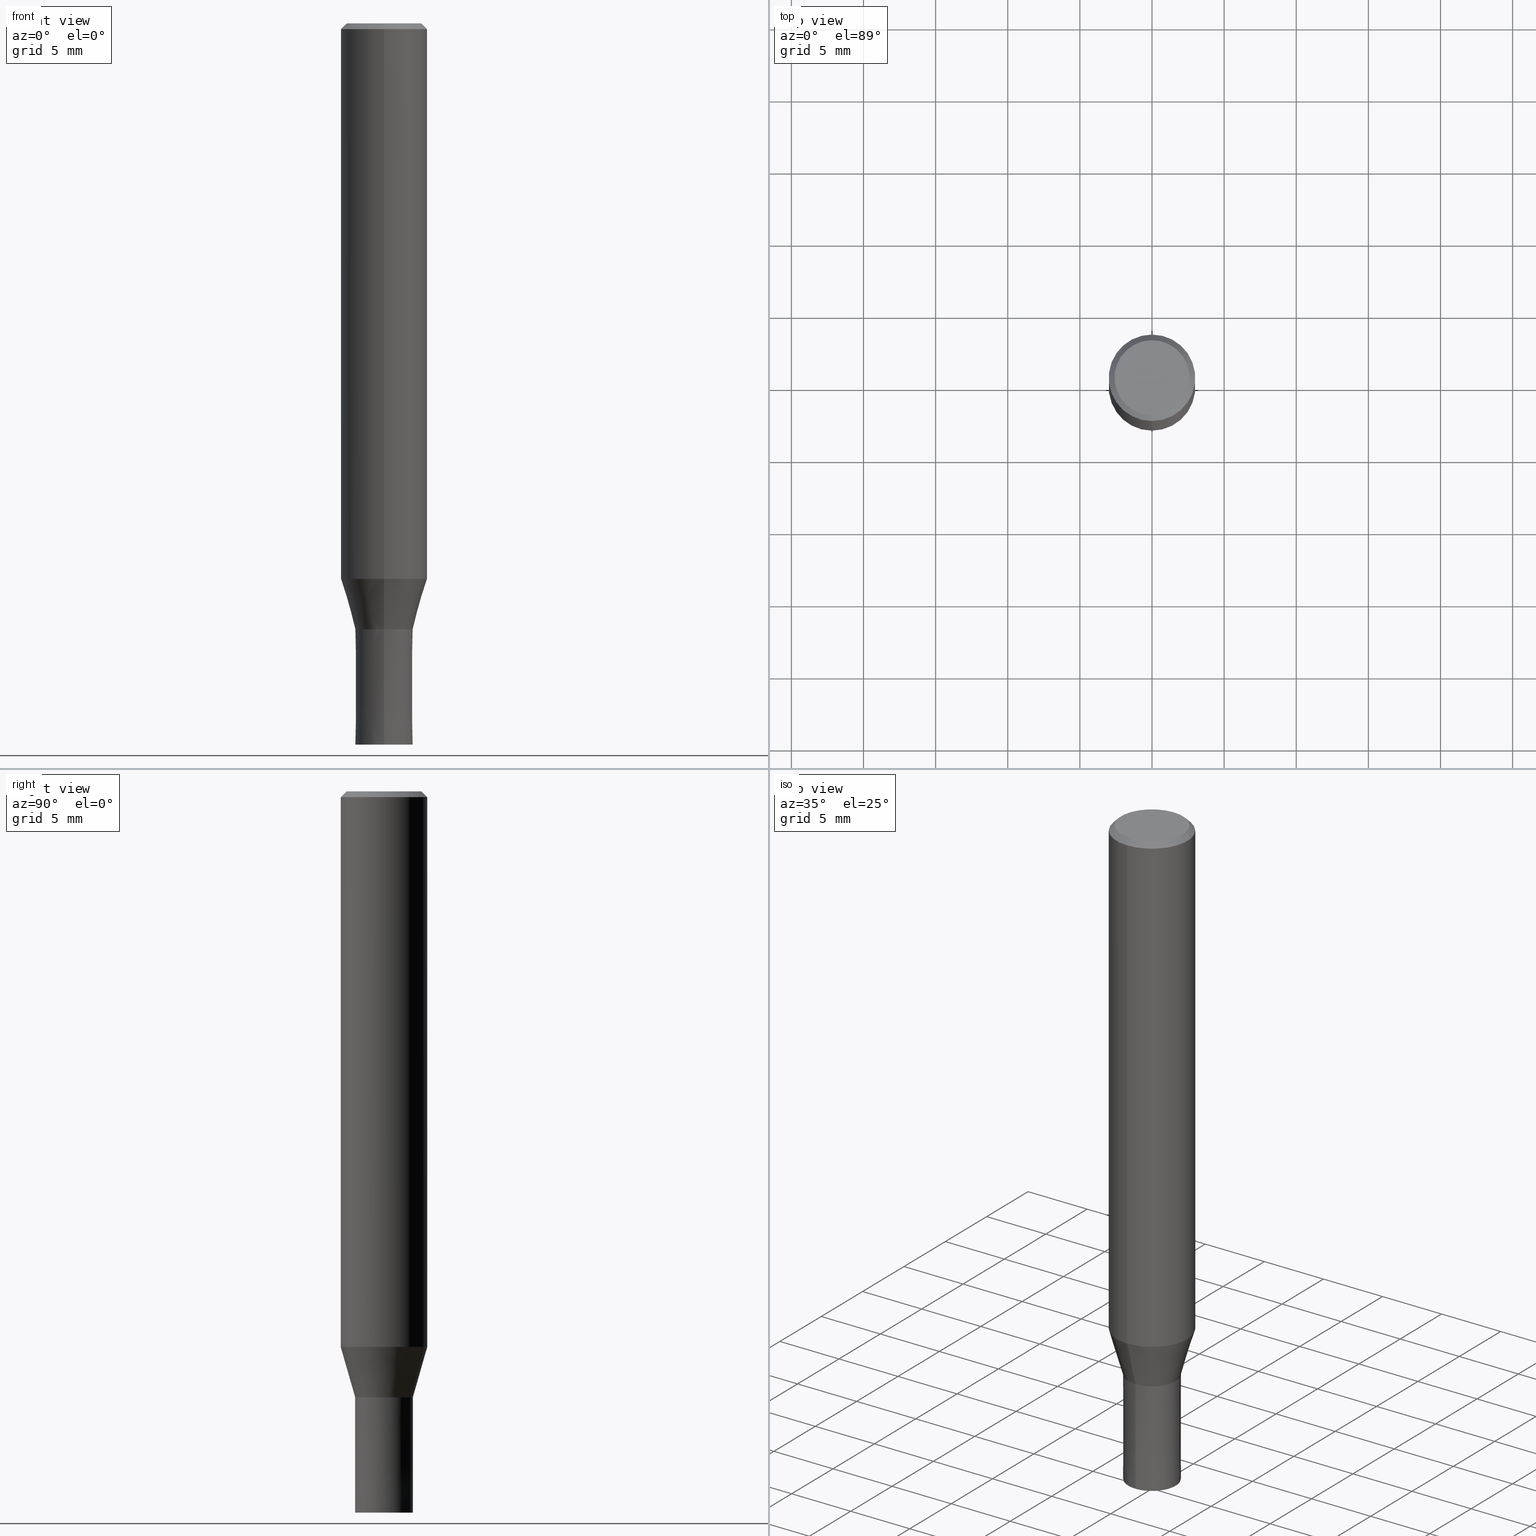
[diagram: canonical four-view strip — front | top / right | iso, engineering-drawing reading convention]
A machine part, canonical four-view strip (front | top / right | iso — engineering-drawing reading convention). The complete STEP part file that produces these views, byte-faithful:
ISO-10303-21;
HEADER;
FILE_DESCRIPTION(('no description'),'unknown implementation level');
FILE_NAME('HMS4040-0800-Huellk.stp','  ',('CIMSOURCE GmbH'),('CADClick - KiM GmbH - www.kimweb.de'),'unknown preprocess','ACIS','unknown authorization');
FILE_SCHEMA(('automotive_design'));
ENDSEC;
DATA;
#1=MECHANICAL_DESIGN_GEOMETRIC_PRESENTATION_REPRESENTATION(' ',(#14,#15,#16,#17,#18,#19,#20,#21,#22,#23,#24,#25,#26,#27,#28,#29,#30,#31,#32,#33,#34,#35,#36,#37,#38,#39,#40,#41,#42,#43,#44,#45,#46,#47,#48,#49,#50,#51,#52,#53,#54,#55,#56,#57,#58,#59,#60,#61,#62,#63,#64),#10);
#2=PRODUCT_DEFINITION_CONTEXT('',#65,'design');
#3=APPLICATION_PROTOCOL_DEFINITION('INTERNATIONAL STANDARD','automotive_design',1994,#65);
#4=PRODUCT_CATEGORY_RELATIONSHIP('NONE','NONE',#66,#67);
#5=SHAPE_DEFINITION_REPRESENTATION(#68,#69);
#6=PRODUCT_DEFINITION_CONTEXT('',#70,'design');
#7=APPLICATION_PROTOCOL_DEFINITION('INTERNATIONAL STANDARD','automotive_design',1994,#70);
#8=PRODUCT_CATEGORY_RELATIONSHIP('NONE','NONE',#71,#72);
#9=SHAPE_DEFINITION_REPRESENTATION(#73,#74);
#10= (GEOMETRIC_REPRESENTATION_CONTEXT(3)GLOBAL_UNCERTAINTY_ASSIGNED_CONTEXT((#77))GLOBAL_UNIT_ASSIGNED_CONTEXT((#79,#80,#81))REPRESENTATION_CONTEXT('NONE','WORKSPACE'));
#14=STYLED_ITEM('',(#83),#84);
#15=STYLED_ITEM('',(#85),#86);
#16=STYLED_ITEM('',(#87),#88);
#17=STYLED_ITEM('',(#89),#90);
#18=STYLED_ITEM('',(#91),#92);
#19=STYLED_ITEM('',(#93),#94);
#20=STYLED_ITEM('',(#95),#96);
#21=STYLED_ITEM('',(#97),#98);
#22=STYLED_ITEM('',(#99),#100);
#23=STYLED_ITEM('',(#101),#102);
#24=STYLED_ITEM('',(#103),#104);
#25=STYLED_ITEM('',(#105),#106);
#26=STYLED_ITEM('',(#107),#108);
#27=STYLED_ITEM('',(#109),#110);
#28=STYLED_ITEM('',(#111),#112);
#29=STYLED_ITEM('',(#113),#114);
#30=STYLED_ITEM('',(#115),#116);
#31=STYLED_ITEM('',(#117),#118);
#32=STYLED_ITEM('',(#119),#120);
#33=STYLED_ITEM('',(#121),#122);
#34=STYLED_ITEM('',(#123),#124);
#35=STYLED_ITEM('',(#125),#126);
#36=STYLED_ITEM('',(#127),#128);
#37=STYLED_ITEM('',(#129),#130);
#38=STYLED_ITEM('',(#131),#132);
#39=STYLED_ITEM('',(#133),#134);
#40=STYLED_ITEM('',(#135),#136);
#41=STYLED_ITEM('',(#137),#138);
#42=STYLED_ITEM('',(#139),#140);
#43=STYLED_ITEM('',(#141),#142);
#44=STYLED_ITEM('',(#143),#144);
#45=STYLED_ITEM('',(#145),#146);
#46=STYLED_ITEM('',(#147),#148);
#47=STYLED_ITEM('',(#149),#150);
#48=STYLED_ITEM('',(#151),#152);
#49=STYLED_ITEM('',(#153),#154);
#50=STYLED_ITEM('',(#155),#156);
#51=STYLED_ITEM('',(#157),#158);
#52=STYLED_ITEM('',(#159),#160);
#53=STYLED_ITEM('',(#161),#162);
#54=STYLED_ITEM('',(#163),#164);
#55=STYLED_ITEM('',(#165),#166);
#56=STYLED_ITEM('',(#167),#168);
#57=STYLED_ITEM('',(#169),#170);
#58=STYLED_ITEM('',(#171),#172);
#59=STYLED_ITEM('',(#173),#174);
#60=STYLED_ITEM('',(#175),#176);
#61=STYLED_ITEM('',(#177),#178);
#62=STYLED_ITEM('',(#179),#180);
#63=STYLED_ITEM('',(#181),#182);
#64=STYLED_ITEM('',(#183),#184);
#65=APPLICATION_CONTEXT(' ');
#66=PRODUCT_CATEGORY('part','NONE');
#67=PRODUCT_RELATED_PRODUCT_CATEGORY('detail',' ',(#185));
#68=PRODUCT_DEFINITION_SHAPE('NONE','NONE',#186);
#69=ADVANCED_BREP_SHAPE_REPRESENTATION('1',(#108,#187),#10);
#70=APPLICATION_CONTEXT(' ');
#71=PRODUCT_CATEGORY('part','NONE');
#72=PRODUCT_RELATED_PRODUCT_CATEGORY('detail',' ',(#188));
#73=PRODUCT_DEFINITION_SHAPE('NONE','NONE',#189);
#74=ADVANCED_BREP_SHAPE_REPRESENTATION('2',(#86,#190),#10);
#77=UNCERTAINTY_MEASURE_WITH_UNIT(LENGTH_MEASURE(1.0E-006),#79,'','');
#79= (CONVERSION_BASED_UNIT('MILLIMETRE',#193)LENGTH_UNIT()NAMED_UNIT(#196));
#80= (NAMED_UNIT(#198)PLANE_ANGLE_UNIT()SI_UNIT($,.RADIAN.));
#81= (NAMED_UNIT(#198)SOLID_ANGLE_UNIT()SI_UNIT($,.STERADIAN.));
#83=PRESENTATION_STYLE_ASSIGNMENT((#204));
#84=VERTEX_POINT('',#205);
#85=PRESENTATION_STYLE_ASSIGNMENT((#206));
#86=MANIFOLD_SOLID_BREP('2',#207);
#87=PRESENTATION_STYLE_ASSIGNMENT((#208));
#88=ADVANCED_FACE('',(#209),#210,.T.);
#89=PRESENTATION_STYLE_ASSIGNMENT((#211));
#90=VERTEX_POINT('',#212);
#91=PRESENTATION_STYLE_ASSIGNMENT((#213));
#92=EDGE_CURVE('',#180,#178,#214,.T.);
#93=PRESENTATION_STYLE_ASSIGNMENT((#215));
#94=ADVANCED_FACE('',(#216),#217,.T.);
#95=PRESENTATION_STYLE_ASSIGNMENT((#218));
#96=EDGE_CURVE('',#146,#104,#219,.T.);
#97=PRESENTATION_STYLE_ASSIGNMENT((#220));
#98=EDGE_CURVE('',#128,#112,#221,.T.);
#99=PRESENTATION_STYLE_ASSIGNMENT((#222));
#100=EDGE_CURVE('',#146,#126,#223,.T.);
#101=PRESENTATION_STYLE_ASSIGNMENT((#224));
#102=EDGE_CURVE('',#148,#182,#225,.T.);
#103=PRESENTATION_STYLE_ASSIGNMENT((#226));
#104=VERTEX_POINT('',#227);
#105=PRESENTATION_STYLE_ASSIGNMENT((#228));
#106=VERTEX_POINT('',#229);
#107=PRESENTATION_STYLE_ASSIGNMENT((#230));
#108=MANIFOLD_SOLID_BREP('1',#231);
#109=PRESENTATION_STYLE_ASSIGNMENT((#232));
#110=EDGE_CURVE('',#84,#156,#233,.T.);
#111=PRESENTATION_STYLE_ASSIGNMENT((#234));
#112=VERTEX_POINT('',#235);
#113=PRESENTATION_STYLE_ASSIGNMENT((#236));
#114=ADVANCED_FACE('',(#237),#238,.T.);
#115=PRESENTATION_STYLE_ASSIGNMENT((#239));
#116=EDGE_CURVE('',#104,#146,#240,.T.);
#117=PRESENTATION_STYLE_ASSIGNMENT((#241));
#118=ADVANCED_FACE('',(#242),#243,.T.);
#119=PRESENTATION_STYLE_ASSIGNMENT((#244));
#120=ADVANCED_FACE('',(#245),#246,.T.);
#121=PRESENTATION_STYLE_ASSIGNMENT((#247));
#122=ADVANCED_FACE('',(#248,#249),#250,.T.);
#123=PRESENTATION_STYLE_ASSIGNMENT((#251));
#124=EDGE_CURVE('',#106,#104,#252,.T.);
#125=PRESENTATION_STYLE_ASSIGNMENT((#253));
#126=VERTEX_POINT('',#254);
#127=PRESENTATION_STYLE_ASSIGNMENT((#255));
#128=VERTEX_POINT('',#256);
#129=PRESENTATION_STYLE_ASSIGNMENT((#257));
#130=EDGE_CURVE('',#178,#180,#258,.T.);
#131=PRESENTATION_STYLE_ASSIGNMENT((#259));
#132=EDGE_CURVE('',#162,#106,#260,.T.);
#133=PRESENTATION_STYLE_ASSIGNMENT((#261));
#134=EDGE_CURVE('',#156,#180,#262,.T.);
#135=PRESENTATION_STYLE_ASSIGNMENT((#263));
#136=ADVANCED_FACE('',(#264),#265,.T.);
#137=PRESENTATION_STYLE_ASSIGNMENT((#266));
#138=EDGE_CURVE('',#148,#128,#267,.T.);
#139=PRESENTATION_STYLE_ASSIGNMENT((#268));
#140=EDGE_CURVE('',#106,#126,#269,.T.);
#141=PRESENTATION_STYLE_ASSIGNMENT((#270));
#142=ADVANCED_FACE('',(#271),#272,.T.);
#143=PRESENTATION_STYLE_ASSIGNMENT((#273));
#144=EDGE_CURVE('',#178,#84,#274,.T.);
#145=PRESENTATION_STYLE_ASSIGNMENT((#275));
#146=VERTEX_POINT('',#276);
#147=PRESENTATION_STYLE_ASSIGNMENT((#277));
#148=VERTEX_POINT('',#278);
#149=PRESENTATION_STYLE_ASSIGNMENT((#279));
#150=EDGE_CURVE('',#126,#90,#280,.T.);
#151=PRESENTATION_STYLE_ASSIGNMENT((#281));
#152=EDGE_CURVE('',#126,#106,#282,.T.);
#153=PRESENTATION_STYLE_ASSIGNMENT((#283));
#154=EDGE_CURVE('',#112,#128,#284,.T.);
#155=PRESENTATION_STYLE_ASSIGNMENT((#285));
#156=VERTEX_POINT('',#286);
#157=PRESENTATION_STYLE_ASSIGNMENT((#287));
#158=ADVANCED_FACE('',(#288),#289,.T.);
#159=PRESENTATION_STYLE_ASSIGNMENT((#290));
#160=ADVANCED_FACE('',(#291),#292,.T.);
#161=PRESENTATION_STYLE_ASSIGNMENT((#293));
#162=VERTEX_POINT('',#294);
#163=PRESENTATION_STYLE_ASSIGNMENT((#295));
#164=EDGE_CURVE('',#90,#162,#296,.T.);
#165=PRESENTATION_STYLE_ASSIGNMENT((#297));
#166=EDGE_CURVE('',#156,#84,#298,.T.);
#167=PRESENTATION_STYLE_ASSIGNMENT((#299));
#168=EDGE_CURVE('',#162,#90,#300,.T.);
#169=PRESENTATION_STYLE_ASSIGNMENT((#301));
#170=EDGE_CURVE('',#182,#148,#302,.T.);
#171=PRESENTATION_STYLE_ASSIGNMENT((#303));
#172=ADVANCED_FACE('',(#304),#305,.T.);
#173=PRESENTATION_STYLE_ASSIGNMENT((#306));
#174=ADVANCED_FACE('',(#307),#308,.T.);
#175=PRESENTATION_STYLE_ASSIGNMENT((#309));
#176=ADVANCED_FACE('',(#310),#311,.T.);
#177=PRESENTATION_STYLE_ASSIGNMENT((#312));
#178=VERTEX_POINT('',#313);
#179=PRESENTATION_STYLE_ASSIGNMENT((#314));
#180=VERTEX_POINT('',#315);
#181=PRESENTATION_STYLE_ASSIGNMENT((#316));
#182=VERTEX_POINT('',#317);
#183=PRESENTATION_STYLE_ASSIGNMENT((#318));
#184=EDGE_CURVE('',#112,#182,#319,.T.);
#185=PRODUCT('1','1','PART-1-DESC',(#320));
#186=PRODUCT_DEFINITION('NONE','NONE',#321,#2);
#187=AXIS2_PLACEMENT_3D('',#322,#323,#324);
#188=PRODUCT('2','2','PART-2-DESC',(#325));
#189=PRODUCT_DEFINITION('NONE','NONE',#326,#6);
#190=AXIS2_PLACEMENT_3D('',#327,#328,#329);
#193=LENGTH_MEASURE_WITH_UNIT(LENGTH_MEASURE(1.0),#330);
#196=DIMENSIONAL_EXPONENTS(1.0,0.0,0.0,0.0,0.0,0.0,0.0);
#198=DIMENSIONAL_EXPONENTS(0.0,0.0,0.0,0.0,0.0,0.0,0.0);
#204=POINT_STYLE(' ',#331,POSITIVE_LENGTH_MEASURE(1.0E-006),#332);
#205=CARTESIAN_POINT('',(0.0,2.0,-50.0));
#206=SURFACE_STYLE_USAGE(.BOTH.,#333);
#207=CLOSED_SHELL('',(#88,#176,#114,#158));
#208=SURFACE_STYLE_USAGE(.BOTH.,#334);
#209=FACE_OUTER_BOUND('',#335,.T.);
#210=CONICAL_SURFACE('',#336,1.99995,1.24999999993476E-005);
#211=POINT_STYLE(' ',#337,POSITIVE_LENGTH_MEASURE(1.0E-006),#338);
#212=CARTESIAN_POINT('',(0.0,3.0,-38.513));
#213=CURVE_STYLE('',#339,POSITIVE_LENGTH_MEASURE(1.0E-006),#340);
#214=CIRCLE('',#341,1.9999);
#215=SURFACE_STYLE_USAGE(.BOTH.,#342);
#216=FACE_OUTER_BOUND('',#343,.T.);
#217=PLANE('',#344);
#218=CURVE_STYLE('',#345,POSITIVE_LENGTH_MEASURE(1.0E-006),#346);
#219=CIRCLE('',#347,2.6);
#220=CURVE_STYLE('',#348,POSITIVE_LENGTH_MEASURE(1.0E-006),#349);
#221=CIRCLE('',#350,2.99995);
#222=CURVE_STYLE('',#351,POSITIVE_LENGTH_MEASURE(1.0E-006),#352);
#223=LINE('',#353,#354);
#224=CURVE_STYLE('',#355,POSITIVE_LENGTH_MEASURE(1.0E-006),#356);
#225=CIRCLE('',#357,1.99995);
#226=POINT_STYLE(' ',#358,POSITIVE_LENGTH_MEASURE(1.0E-006),#359);
#227=CARTESIAN_POINT('',(3.18397651993818E-016,-2.6,0.0));
#228=POINT_STYLE(' ',#360,POSITIVE_LENGTH_MEASURE(1.0E-006),#361);
#229=CARTESIAN_POINT('',(3.67381906146713E-016,-3.0,-0.399999999999999));
#230=SURFACE_STYLE_USAGE(.BOTH.,#362);
#231=CLOSED_SHELL('',(#118,#136,#172,#122,#94,#174,#142,#120,#160));
#232=CURVE_STYLE('',#363,POSITIVE_LENGTH_MEASURE(1.0E-006),#364);
#233=CIRCLE('',#365,2.0);
#234=POINT_STYLE(' ',#366,POSITIVE_LENGTH_MEASURE(1.0E-006),#367);
#235=CARTESIAN_POINT('',(0.0,2.99995,-38.513));
#236=SURFACE_STYLE_USAGE(.BOTH.,#368);
#237=FACE_OUTER_BOUND('',#369,.T.);
#238=CONICAL_SURFACE('',#370,1.99995,1.24999999993476E-005);
#239=CURVE_STYLE('',#371,POSITIVE_LENGTH_MEASURE(1.0E-006),#372);
#240=CIRCLE('',#373,2.6);
#241=SURFACE_STYLE_USAGE(.BOTH.,#374);
#242=FACE_OUTER_BOUND('',#375,.T.);
#243=CONICAL_SURFACE('',#376,2.49995,0.279284171542493);
#244=SURFACE_STYLE_USAGE(.BOTH.,#377);
#245=FACE_OUTER_BOUND('',#378,.T.);
#246=CONICAL_SURFACE('',#379,2.49995,0.279284171542493);
#247=SURFACE_STYLE_USAGE(.BOTH.,#380);
#248=FACE_OUTER_BOUND('',#381,.T.);
#249=FACE_BOUND('',#382,.T.);
#250=PLANE('',#383);
#251=CURVE_STYLE('',#384,POSITIVE_LENGTH_MEASURE(1.0E-006),#385);
#252=LINE('',#386,#387);
#253=POINT_STYLE(' ',#388,POSITIVE_LENGTH_MEASURE(1.0E-006),#389);
#254=CARTESIAN_POINT('',(0.0,3.0,-0.399999999999999));
#255=POINT_STYLE(' ',#390,POSITIVE_LENGTH_MEASURE(1.0E-006),#391);
#256=CARTESIAN_POINT('',(3.67375783114944E-016,-2.99995,-38.513));
#257=CURVE_STYLE('',#392,POSITIVE_LENGTH_MEASURE(1.0E-006),#393);
#258=CIRCLE('',#394,1.9999);
#259=CURVE_STYLE('',#395,POSITIVE_LENGTH_MEASURE(1.0E-006),#396);
#260=LINE('',#397,#398);
#261=CURVE_STYLE('',#399,POSITIVE_LENGTH_MEASURE(1.0E-006),#400);
#262=LINE('',#401,#402);
#263=SURFACE_STYLE_USAGE(.BOTH.,#403);
#264=FACE_OUTER_BOUND('',#404,.T.);
#265=CYLINDRICAL_SURFACE('',#405,3.0);
#266=CURVE_STYLE('',#406,POSITIVE_LENGTH_MEASURE(1.0E-006),#407);
#267=LINE('',#408,#409);
#268=CURVE_STYLE('',#410,POSITIVE_LENGTH_MEASURE(1.0E-006),#411);
#269=CIRCLE('',#412,3.0);
#270=SURFACE_STYLE_USAGE(.BOTH.,#413);
#271=FACE_OUTER_BOUND('',#414,.T.);
#272=CYLINDRICAL_SURFACE('',#415,3.0);
#273=CURVE_STYLE('',#416,POSITIVE_LENGTH_MEASURE(1.0E-006),#417);
#274=LINE('',#418,#419);
#275=POINT_STYLE(' ',#420,POSITIVE_LENGTH_MEASURE(1.0E-006),#421);
#276=CARTESIAN_POINT('',(0.0,2.6,0.0));
#277=POINT_STYLE(' ',#422,POSITIVE_LENGTH_MEASURE(1.0E-006),#423);
#278=CARTESIAN_POINT('',(2.44915147732706E-016,-1.99995,-42.0));
#279=CURVE_STYLE('',#424,POSITIVE_LENGTH_MEASURE(1.0E-006),#425);
#280=LINE('',#426,#427);
#281=CURVE_STYLE('',#428,POSITIVE_LENGTH_MEASURE(1.0E-006),#429);
#282=CIRCLE('',#430,3.0);
#283=CURVE_STYLE('',#431,POSITIVE_LENGTH_MEASURE(1.0E-006),#432);
#284=CIRCLE('',#433,2.99995);
#285=POINT_STYLE(' ',#434,POSITIVE_LENGTH_MEASURE(1.0E-006),#435);
#286=CARTESIAN_POINT('',(2.44921270764475E-016,-2.0,-50.0));
#287=SURFACE_STYLE_USAGE(.BOTH.,#436);
#288=FACE_OUTER_BOUND('',#437,.T.);
#289=PLANE('',#438);
#290=SURFACE_STYLE_USAGE(.BOTH.,#439);
#291=FACE_OUTER_BOUND('',#440,.T.);
#292=PLANE('',#441);
#293=POINT_STYLE(' ',#442,POSITIVE_LENGTH_MEASURE(1.0E-006),#443);
#294=CARTESIAN_POINT('',(3.67381906146713E-016,-3.0,-38.513));
#295=CURVE_STYLE('',#444,POSITIVE_LENGTH_MEASURE(1.0E-006),#445);
#296=CIRCLE('',#446,3.0);
#297=CURVE_STYLE('',#447,POSITIVE_LENGTH_MEASURE(1.0E-006),#448);
#298=CIRCLE('',#449,2.0);
#299=CURVE_STYLE('',#450,POSITIVE_LENGTH_MEASURE(1.0E-006),#451);
#300=CIRCLE('',#452,3.0);
#301=CURVE_STYLE('',#453,POSITIVE_LENGTH_MEASURE(1.0E-006),#454);
#302=CIRCLE('',#455,1.99995);
#303=SURFACE_STYLE_USAGE(.BOTH.,#456);
#304=FACE_OUTER_BOUND('',#457,.T.);
#305=CONICAL_SURFACE('',#458,2.8,0.78539816339745);
#306=SURFACE_STYLE_USAGE(.BOTH.,#459);
#307=FACE_OUTER_BOUND('',#460,.T.);
#308=CONICAL_SURFACE('',#461,2.8,0.78539816339745);
#309=SURFACE_STYLE_USAGE(.BOTH.,#462);
#310=FACE_OUTER_BOUND('',#463,.T.);
#311=PLANE('',#464);
#312=POINT_STYLE(' ',#465,POSITIVE_LENGTH_MEASURE(1.0E-006),#466);
#313=CARTESIAN_POINT('',(0.0,1.9999,-42.0));
#314=POINT_STYLE(' ',#467,POSITIVE_LENGTH_MEASURE(1.0E-006),#468);
#315=CARTESIAN_POINT('',(2.44909024700937E-016,-1.9999,-42.0));
#316=POINT_STYLE(' ',#469,POSITIVE_LENGTH_MEASURE(1.0E-006),#470);
#317=CARTESIAN_POINT('',(0.0,1.99995,-42.0));
#318=CURVE_STYLE('',#471,POSITIVE_LENGTH_MEASURE(1.0E-006),#472);
#319=LINE('',#473,#474);
#320=PRODUCT_CONTEXT('',#65,'mechanical');
#321=PRODUCT_DEFINITION_FORMATION_WITH_SPECIFIED_SOURCE(' ','NONE',#185,.NOT_KNOWN.);
#322=CARTESIAN_POINT('',(0.0,0.0,0.0));
#323=DIRECTION('',(0.0,0.0,1.0));
#324=DIRECTION('',(1.0,0.0,0.0));
#325=PRODUCT_CONTEXT('',#70,'mechanical');
#326=PRODUCT_DEFINITION_FORMATION_WITH_SPECIFIED_SOURCE(' ','NONE',#188,.NOT_KNOWN.);
#327=CARTESIAN_POINT('',(0.0,0.0,0.0));
#328=DIRECTION('',(0.0,0.0,1.0));
#329=DIRECTION('',(1.0,0.0,0.0));
#330= (NAMED_UNIT(#196)LENGTH_UNIT()SI_UNIT(.MILLI.,.METRE.));
#331=PRE_DEFINED_MARKER('');
#332=COLOUR_RGB('',0.800000011920929,0.800000011920929,0.800000011920929);
#333=SURFACE_SIDE_STYLE('',(#476));
#334=SURFACE_SIDE_STYLE('',(#477));
#335=EDGE_LOOP('',(#478,#479,#480,#481));
#336=AXIS2_PLACEMENT_3D('',#482,#483,#484);
#337=PRE_DEFINED_MARKER('');
#338=COLOUR_RGB('',0.498039215803146,0.498039215803146,0.498039215803146);
#339=DRAUGHTING_PRE_DEFINED_CURVE_FONT('continuous');
#340=COLOUR_RGB('',0.800000011920929,0.800000011920929,0.800000011920929);
#341=AXIS2_PLACEMENT_3D('',#485,#486,#487);
#342=SURFACE_SIDE_STYLE('',(#488));
#343=EDGE_LOOP('',(#489,#490));
#344=AXIS2_PLACEMENT_3D('',#491,#492,#493);
#345=DRAUGHTING_PRE_DEFINED_CURVE_FONT('continuous');
#346=COLOUR_RGB('',0.498039215803146,0.498039215803146,0.498039215803146);
#347=AXIS2_PLACEMENT_3D('',#494,#495,#496);
#348=DRAUGHTING_PRE_DEFINED_CURVE_FONT('continuous');
#349=COLOUR_RGB('',0.498039215803146,0.498039215803146,0.498039215803146);
#350=AXIS2_PLACEMENT_3D('',#497,#498,#499);
#351=DRAUGHTING_PRE_DEFINED_CURVE_FONT('continuous');
#352=COLOUR_RGB('',0.498039215803146,0.498039215803146,0.498039215803146);
#353=CARTESIAN_POINT('',(-3.42889779070266E-016,2.8,-0.200000000000003));
#354=VECTOR('',#500,1.0);
#355=DRAUGHTING_PRE_DEFINED_CURVE_FONT('continuous');
#356=COLOUR_RGB('',0.498039215803146,0.498039215803146,0.498039215803146);
#357=AXIS2_PLACEMENT_3D('',#501,#502,#503);
#358=PRE_DEFINED_MARKER('');
#359=COLOUR_RGB('',0.498039215803146,0.498039215803146,0.498039215803146);
#360=PRE_DEFINED_MARKER('');
#361=COLOUR_RGB('',0.498039215803146,0.498039215803146,0.498039215803146);
#362=SURFACE_SIDE_STYLE('',(#504));
#363=DRAUGHTING_PRE_DEFINED_CURVE_FONT('continuous');
#364=COLOUR_RGB('',0.800000011920929,0.800000011920929,0.800000011920929);
#365=AXIS2_PLACEMENT_3D('',#505,#506,#507);
#366=PRE_DEFINED_MARKER('');
#367=COLOUR_RGB('',0.498039215803146,0.498039215803146,0.498039215803146);
#368=SURFACE_SIDE_STYLE('',(#508));
#369=EDGE_LOOP('',(#509,#510,#511,#512));
#370=AXIS2_PLACEMENT_3D('',#513,#514,#515);
#371=DRAUGHTING_PRE_DEFINED_CURVE_FONT('continuous');
#372=COLOUR_RGB('',0.498039215803146,0.498039215803146,0.498039215803146);
#373=AXIS2_PLACEMENT_3D('',#516,#517,#518);
#374=SURFACE_SIDE_STYLE('',(#519));
#375=EDGE_LOOP('',(#520,#521,#522,#523));
#376=AXIS2_PLACEMENT_3D('',#524,#525,#526);
#377=SURFACE_SIDE_STYLE('',(#527));
#378=EDGE_LOOP('',(#528,#529,#530,#531));
#379=AXIS2_PLACEMENT_3D('',#532,#533,#534);
#380=SURFACE_SIDE_STYLE('',(#535));
#381=EDGE_LOOP('',(#536,#537));
#382=EDGE_LOOP('',(#538,#539));
#383=AXIS2_PLACEMENT_3D('',#540,#541,#542);
#384=DRAUGHTING_PRE_DEFINED_CURVE_FONT('continuous');
#385=COLOUR_RGB('',0.498039215803146,0.498039215803146,0.498039215803146);
#386=CARTESIAN_POINT('',(3.42889779070266E-016,-2.8,-0.200000000000003));
#387=VECTOR('',#543,1.0);
#388=PRE_DEFINED_MARKER('');
#389=COLOUR_RGB('',0.498039215803146,0.498039215803146,0.498039215803146);
#390=PRE_DEFINED_MARKER('');
#391=COLOUR_RGB('',0.498039215803146,0.498039215803146,0.498039215803146);
#392=DRAUGHTING_PRE_DEFINED_CURVE_FONT('continuous');
#393=COLOUR_RGB('',0.800000011920929,0.800000011920929,0.800000011920929);
#394=AXIS2_PLACEMENT_3D('',#544,#545,#546);
#395=DRAUGHTING_PRE_DEFINED_CURVE_FONT('continuous');
#396=COLOUR_RGB('',0.498039215803146,0.498039215803146,0.498039215803146);
#397=CARTESIAN_POINT('',(3.67381906146713E-016,-3.0,-19.4565));
#398=VECTOR('',#547,1.0);
#399=DRAUGHTING_PRE_DEFINED_CURVE_FONT('continuous');
#400=COLOUR_RGB('',0.800000011920929,0.800000011920929,0.800000011920929);
#401=CARTESIAN_POINT('',(2.44915147732706E-016,-1.99995,-46.0));
#402=VECTOR('',#548,1.0);
#403=SURFACE_SIDE_STYLE('',(#549));
#404=EDGE_LOOP('',(#550,#551,#552,#553));
#405=AXIS2_PLACEMENT_3D('',#554,#555,#556);
#406=DRAUGHTING_PRE_DEFINED_CURVE_FONT('continuous');
#407=COLOUR_RGB('',0.498039215803146,0.498039215803146,0.498039215803146);
#408=CARTESIAN_POINT('',(3.06145465423825E-016,-2.49995,-40.2565));
#409=VECTOR('',#557,1.0);
#410=DRAUGHTING_PRE_DEFINED_CURVE_FONT('continuous');
#411=COLOUR_RGB('',0.498039215803146,0.498039215803146,0.498039215803146);
#412=AXIS2_PLACEMENT_3D('',#558,#559,#560);
#413=SURFACE_SIDE_STYLE('',(#561));
#414=EDGE_LOOP('',(#562,#563,#564,#565));
#415=AXIS2_PLACEMENT_3D('',#566,#567,#568);
#416=DRAUGHTING_PRE_DEFINED_CURVE_FONT('continuous');
#417=COLOUR_RGB('',0.800000011920929,0.800000011920929,0.800000011920929);
#418=CARTESIAN_POINT('',(-2.44915147732706E-016,1.99995,-46.0));
#419=VECTOR('',#569,1.0);
#420=PRE_DEFINED_MARKER('');
#421=COLOUR_RGB('',0.498039215803146,0.498039215803146,0.498039215803146);
#422=PRE_DEFINED_MARKER('');
#423=COLOUR_RGB('',0.498039215803146,0.498039215803146,0.498039215803146);
#424=DRAUGHTING_PRE_DEFINED_CURVE_FONT('continuous');
#425=COLOUR_RGB('',0.498039215803146,0.498039215803146,0.498039215803146);
#426=CARTESIAN_POINT('',(-3.67381906146713E-016,3.0,-19.4565));
#427=VECTOR('',#570,1.0);
#428=DRAUGHTING_PRE_DEFINED_CURVE_FONT('continuous');
#429=COLOUR_RGB('',0.498039215803146,0.498039215803146,0.498039215803146);
#430=AXIS2_PLACEMENT_3D('',#571,#572,#573);
#431=DRAUGHTING_PRE_DEFINED_CURVE_FONT('continuous');
#432=COLOUR_RGB('',0.498039215803146,0.498039215803146,0.498039215803146);
#433=AXIS2_PLACEMENT_3D('',#574,#575,#576);
#434=PRE_DEFINED_MARKER('');
#435=COLOUR_RGB('',0.800000011920929,0.800000011920929,0.800000011920929);
#436=SURFACE_SIDE_STYLE('',(#577));
#437=EDGE_LOOP('',(#578,#579));
#438=AXIS2_PLACEMENT_3D('',#580,#581,#582);
#439=SURFACE_SIDE_STYLE('',(#583));
#440=EDGE_LOOP('',(#584,#585));
#441=AXIS2_PLACEMENT_3D('',#586,#587,#588);
#442=PRE_DEFINED_MARKER('');
#443=COLOUR_RGB('',0.498039215803146,0.498039215803146,0.498039215803146);
#444=DRAUGHTING_PRE_DEFINED_CURVE_FONT('continuous');
#445=COLOUR_RGB('',0.498039215803146,0.498039215803146,0.498039215803146);
#446=AXIS2_PLACEMENT_3D('',#589,#590,#591);
#447=DRAUGHTING_PRE_DEFINED_CURVE_FONT('continuous');
#448=COLOUR_RGB('',0.800000011920929,0.800000011920929,0.800000011920929);
#449=AXIS2_PLACEMENT_3D('',#592,#593,#594);
#450=DRAUGHTING_PRE_DEFINED_CURVE_FONT('continuous');
#451=COLOUR_RGB('',0.498039215803146,0.498039215803146,0.498039215803146);
#452=AXIS2_PLACEMENT_3D('',#595,#596,#597);
#453=DRAUGHTING_PRE_DEFINED_CURVE_FONT('continuous');
#454=COLOUR_RGB('',0.498039215803146,0.498039215803146,0.498039215803146);
#455=AXIS2_PLACEMENT_3D('',#598,#599,#600);
#456=SURFACE_SIDE_STYLE('',(#601));
#457=EDGE_LOOP('',(#602,#603,#604,#605));
#458=AXIS2_PLACEMENT_3D('',#606,#607,#608);
#459=SURFACE_SIDE_STYLE('',(#609));
#460=EDGE_LOOP('',(#610,#611,#612,#613));
#461=AXIS2_PLACEMENT_3D('',#614,#615,#616);
#462=SURFACE_SIDE_STYLE('',(#617));
#463=EDGE_LOOP('',(#618,#619));
#464=AXIS2_PLACEMENT_3D('',#620,#621,#622);
#465=PRE_DEFINED_MARKER('');
#466=COLOUR_RGB('',0.800000011920929,0.800000011920929,0.800000011920929);
#467=PRE_DEFINED_MARKER('');
#468=COLOUR_RGB('',0.800000011920929,0.800000011920929,0.800000011920929);
#469=PRE_DEFINED_MARKER('');
#470=COLOUR_RGB('',0.498039215803146,0.498039215803146,0.498039215803146);
#471=DRAUGHTING_PRE_DEFINED_CURVE_FONT('continuous');
#472=COLOUR_RGB('',0.498039215803146,0.498039215803146,0.498039215803146);
#473=CARTESIAN_POINT('',(-3.06145465423825E-016,2.49995,-40.2565));
#474=VECTOR('',#623,1.0);
#476=SURFACE_STYLE_FILL_AREA(#624);
#477=SURFACE_STYLE_FILL_AREA(#625);
#478=ORIENTED_EDGE('',*,*,#144,.F.);
#479=ORIENTED_EDGE('',*,*,#130,.T.);
#480=ORIENTED_EDGE('',*,*,#134,.F.);
#481=ORIENTED_EDGE('',*,*,#110,.F.);
#482=CARTESIAN_POINT('',(0.0,0.0,-46.0));
#483=DIRECTION('',(0.0,-0.0,-1.0));
#484=DIRECTION('',(0.0,1.0,0.0));
#485=CARTESIAN_POINT('',(0.0,0.0,-42.0));
#486=DIRECTION('',(0.0,0.0,-1.0));
#487=DIRECTION('',(0.0,1.0,0.0));
#488=SURFACE_STYLE_FILL_AREA(#626);
#489=ORIENTED_EDGE('',*,*,#96,.F.);
#490=ORIENTED_EDGE('',*,*,#116,.F.);
#491=CARTESIAN_POINT('',(0.0,1.3,0.0));
#492=DIRECTION('',(-0.0,0.0,1.0));
#493=DIRECTION('',(0.0,-1.0,0.0));
#494=CARTESIAN_POINT('',(0.0,0.0,0.0));
#495=DIRECTION('',(0.0,0.0,-1.0));
#496=DIRECTION('',(0.0,1.0,0.0));
#497=CARTESIAN_POINT('',(0.0,0.0,-38.513));
#498=DIRECTION('',(0.0,0.0,-1.0));
#499=DIRECTION('',(0.0,1.0,0.0));
#500=DIRECTION('',(-8.65927457071937E-017,0.707106781186549,-0.707106781186546));
#501=CARTESIAN_POINT('',(0.0,0.0,-42.0));
#502=DIRECTION('',(0.0,0.0,-1.0));
#503=DIRECTION('',(0.0,1.0,0.0));
#504=SURFACE_STYLE_FILL_AREA(#627);
#505=CARTESIAN_POINT('',(0.0,0.0,-50.0));
#506=DIRECTION('',(0.0,0.0,-1.0));
#507=DIRECTION('',(0.0,1.0,0.0));
#508=SURFACE_STYLE_FILL_AREA(#628);
#509=ORIENTED_EDGE('',*,*,#144,.T.);
#510=ORIENTED_EDGE('',*,*,#166,.F.);
#511=ORIENTED_EDGE('',*,*,#134,.T.);
#512=ORIENTED_EDGE('',*,*,#92,.T.);
#513=CARTESIAN_POINT('',(0.0,0.0,-46.0));
#514=DIRECTION('',(0.0,-0.0,-1.0));
#515=DIRECTION('',(0.0,1.0,0.0));
#516=CARTESIAN_POINT('',(0.0,0.0,0.0));
#517=DIRECTION('',(0.0,0.0,-1.0));
#518=DIRECTION('',(0.0,1.0,0.0));
#519=SURFACE_STYLE_FILL_AREA(#629);
#520=ORIENTED_EDGE('',*,*,#184,.F.);
#521=ORIENTED_EDGE('',*,*,#154,.T.);
#522=ORIENTED_EDGE('',*,*,#138,.F.);
#523=ORIENTED_EDGE('',*,*,#170,.F.);
#524=CARTESIAN_POINT('',(0.0,0.0,-40.2565));
#525=DIRECTION('',(-0.0,-0.0,1.0));
#526=DIRECTION('',(0.0,1.0,0.0));
#527=SURFACE_STYLE_FILL_AREA(#630);
#528=ORIENTED_EDGE('',*,*,#184,.T.);
#529=ORIENTED_EDGE('',*,*,#102,.F.);
#530=ORIENTED_EDGE('',*,*,#138,.T.);
#531=ORIENTED_EDGE('',*,*,#98,.T.);
#532=CARTESIAN_POINT('',(0.0,0.0,-40.2565));
#533=DIRECTION('',(-0.0,-0.0,1.0));
#534=DIRECTION('',(0.0,1.0,0.0));
#535=SURFACE_STYLE_FILL_AREA(#631);
#536=ORIENTED_EDGE('',*,*,#164,.T.);
#537=ORIENTED_EDGE('',*,*,#168,.T.);
#538=ORIENTED_EDGE('',*,*,#154,.F.);
#539=ORIENTED_EDGE('',*,*,#98,.F.);
#540=CARTESIAN_POINT('',(0.0,1.5,-38.513));
#541=DIRECTION('',(0.0,0.0,-1.0));
#542=DIRECTION('',(0.0,1.0,0.0));
#543=DIRECTION('',(-8.65927457071937E-017,0.707106781186549,0.707106781186546));
#544=CARTESIAN_POINT('',(0.0,0.0,-42.0));
#545=DIRECTION('',(0.0,0.0,-1.0));
#546=DIRECTION('',(0.0,1.0,0.0));
#547=DIRECTION('',(-0.0,-0.0,1.0));
#548=DIRECTION('',(-1.53075794215821E-021,1.24999999990221E-005,0.999999999921875));
#549=SURFACE_STYLE_FILL_AREA(#632);
#550=ORIENTED_EDGE('',*,*,#150,.F.);
#551=ORIENTED_EDGE('',*,*,#152,.T.);
#552=ORIENTED_EDGE('',*,*,#132,.F.);
#553=ORIENTED_EDGE('',*,*,#164,.F.);
#554=CARTESIAN_POINT('',(0.0,0.0,-19.4565));
#555=DIRECTION('',(-0.0,-0.0,1.0));
#556=DIRECTION('',(0.0,1.0,0.0));
#557=DIRECTION('',(3.3758432755158E-017,-0.275667626987133,0.961253015304131));
#558=CARTESIAN_POINT('',(0.0,0.0,-0.399999999999999));
#559=DIRECTION('',(0.0,0.0,-1.0));
#560=DIRECTION('',(0.0,1.0,0.0));
#561=SURFACE_STYLE_FILL_AREA(#633);
#562=ORIENTED_EDGE('',*,*,#150,.T.);
#563=ORIENTED_EDGE('',*,*,#168,.F.);
#564=ORIENTED_EDGE('',*,*,#132,.T.);
#565=ORIENTED_EDGE('',*,*,#140,.T.);
#566=CARTESIAN_POINT('',(0.0,0.0,-19.4565));
#567=DIRECTION('',(-0.0,-0.0,1.0));
#568=DIRECTION('',(0.0,1.0,0.0));
#569=DIRECTION('',(-1.53075794215821E-021,1.24999999990221E-005,-0.999999999921875));
#570=DIRECTION('',(0.0,0.0,-1.0));
#571=CARTESIAN_POINT('',(0.0,0.0,-0.399999999999999));
#572=DIRECTION('',(0.0,0.0,-1.0));
#573=DIRECTION('',(0.0,1.0,0.0));
#574=CARTESIAN_POINT('',(0.0,0.0,-38.513));
#575=DIRECTION('',(0.0,0.0,-1.0));
#576=DIRECTION('',(0.0,1.0,0.0));
#577=SURFACE_STYLE_FILL_AREA(#634);
#578=ORIENTED_EDGE('',*,*,#110,.T.);
#579=ORIENTED_EDGE('',*,*,#166,.T.);
#580=CARTESIAN_POINT('',(0.0,0.9975,-50.0));
#581=DIRECTION('',(0.0,0.0,-1.0));
#582=DIRECTION('',(0.0,1.0,0.0));
#583=SURFACE_STYLE_FILL_AREA(#635);
#584=ORIENTED_EDGE('',*,*,#170,.T.);
#585=ORIENTED_EDGE('',*,*,#102,.T.);
#586=CARTESIAN_POINT('',(0.0,0.999975,-42.0));
#587=DIRECTION('',(0.0,0.0,-1.0));
#588=DIRECTION('',(0.0,1.0,0.0));
#589=CARTESIAN_POINT('',(0.0,0.0,-38.513));
#590=DIRECTION('',(0.0,0.0,-1.0));
#591=DIRECTION('',(0.0,1.0,0.0));
#592=CARTESIAN_POINT('',(0.0,0.0,-50.0));
#593=DIRECTION('',(0.0,0.0,-1.0));
#594=DIRECTION('',(0.0,1.0,0.0));
#595=CARTESIAN_POINT('',(0.0,0.0,-38.513));
#596=DIRECTION('',(0.0,0.0,-1.0));
#597=DIRECTION('',(0.0,1.0,0.0));
#598=CARTESIAN_POINT('',(0.0,0.0,-42.0));
#599=DIRECTION('',(0.0,0.0,-1.0));
#600=DIRECTION('',(0.0,1.0,0.0));
#601=SURFACE_STYLE_FILL_AREA(#636);
#602=ORIENTED_EDGE('',*,*,#100,.F.);
#603=ORIENTED_EDGE('',*,*,#96,.T.);
#604=ORIENTED_EDGE('',*,*,#124,.F.);
#605=ORIENTED_EDGE('',*,*,#152,.F.);
#606=CARTESIAN_POINT('',(0.0,0.0,-0.200000000000003));
#607=DIRECTION('',(0.0,-0.0,-1.0));
#608=DIRECTION('',(0.0,1.0,0.0));
#609=SURFACE_STYLE_FILL_AREA(#637);
#610=ORIENTED_EDGE('',*,*,#100,.T.);
#611=ORIENTED_EDGE('',*,*,#140,.F.);
#612=ORIENTED_EDGE('',*,*,#124,.T.);
#613=ORIENTED_EDGE('',*,*,#116,.T.);
#614=CARTESIAN_POINT('',(0.0,0.0,-0.200000000000003));
#615=DIRECTION('',(0.0,-0.0,-1.0));
#616=DIRECTION('',(0.0,1.0,0.0));
#617=SURFACE_STYLE_FILL_AREA(#638);
#618=ORIENTED_EDGE('',*,*,#130,.F.);
#619=ORIENTED_EDGE('',*,*,#92,.F.);
#620=CARTESIAN_POINT('',(0.0,0.99995,-42.0));
#621=DIRECTION('',(-0.0,0.0,1.0));
#622=DIRECTION('',(0.0,-1.0,0.0));
#623=DIRECTION('',(3.3758432755158E-017,-0.275667626987133,-0.961253015304131));
#624=FILL_AREA_STYLE('',(#639));
#625=FILL_AREA_STYLE('',(#640));
#626=FILL_AREA_STYLE('',(#641));
#627=FILL_AREA_STYLE('',(#642));
#628=FILL_AREA_STYLE('',(#643));
#629=FILL_AREA_STYLE('',(#644));
#630=FILL_AREA_STYLE('',(#645));
#631=FILL_AREA_STYLE('',(#646));
#632=FILL_AREA_STYLE('',(#647));
#633=FILL_AREA_STYLE('',(#648));
#634=FILL_AREA_STYLE('',(#649));
#635=FILL_AREA_STYLE('',(#650));
#636=FILL_AREA_STYLE('',(#651));
#637=FILL_AREA_STYLE('',(#652));
#638=FILL_AREA_STYLE('',(#653));
#639=FILL_AREA_STYLE_COLOUR('',#654);
#640=FILL_AREA_STYLE_COLOUR('',#655);
#641=FILL_AREA_STYLE_COLOUR('',#656);
#642=FILL_AREA_STYLE_COLOUR('',#657);
#643=FILL_AREA_STYLE_COLOUR('',#658);
#644=FILL_AREA_STYLE_COLOUR('',#659);
#645=FILL_AREA_STYLE_COLOUR('',#660);
#646=FILL_AREA_STYLE_COLOUR('',#661);
#647=FILL_AREA_STYLE_COLOUR('',#662);
#648=FILL_AREA_STYLE_COLOUR('',#663);
#649=FILL_AREA_STYLE_COLOUR('',#664);
#650=FILL_AREA_STYLE_COLOUR('',#665);
#651=FILL_AREA_STYLE_COLOUR('',#666);
#652=FILL_AREA_STYLE_COLOUR('',#667);
#653=FILL_AREA_STYLE_COLOUR('',#668);
#654=COLOUR_RGB('',0.800000011920929,0.800000011920929,0.800000011920929);
#655=COLOUR_RGB('',0.800000011920929,0.800000011920929,0.800000011920929);
#656=COLOUR_RGB('',0.498039215803146,0.498039215803146,0.498039215803146);
#657=COLOUR_RGB('',0.498039215803146,0.498039215803146,0.498039215803146);
#658=COLOUR_RGB('',0.800000011920929,0.800000011920929,0.800000011920929);
#659=COLOUR_RGB('',0.498039215803146,0.498039215803146,0.498039215803146);
#660=COLOUR_RGB('',0.498039215803146,0.498039215803146,0.498039215803146);
#661=COLOUR_RGB('',0.498039215803146,0.498039215803146,0.498039215803146);
#662=COLOUR_RGB('',0.498039215803146,0.498039215803146,0.498039215803146);
#663=COLOUR_RGB('',0.498039215803146,0.498039215803146,0.498039215803146);
#664=COLOUR_RGB('',0.800000011920929,0.800000011920929,0.800000011920929);
#665=COLOUR_RGB('',0.498039215803146,0.498039215803146,0.498039215803146);
#666=COLOUR_RGB('',0.498039215803146,0.498039215803146,0.498039215803146);
#667=COLOUR_RGB('',0.498039215803146,0.498039215803146,0.498039215803146);
#668=COLOUR_RGB('',0.800000011920929,0.800000011920929,0.800000011920929);
#669=AXIS2_PLACEMENT_3D('PCS',#670,#671,#672);
#670=CARTESIAN_POINT('',(0.0,0.0,0.0));
#671=DIRECTION('',(0.0,0.0,1.0));
#672=DIRECTION('',(1.0,0.0,0.0));
#673=AXIS2_PLACEMENT_3D('CIP',#674,#675,#676);
#674=CARTESIAN_POINT('',(0.0,0.0,-50.0));
#675=DIRECTION('',(0.0,0.0,1.0));
#676=DIRECTION('',(1.0,0.0,0.0));
#677=AXIS2_PLACEMENT_3D('CRP',#678,#679,#680);
#678=CARTESIAN_POINT('',(-2.0,0.0,-50.0));
#679=DIRECTION('',(0.0,0.0,1.0));
#680=DIRECTION('',(1.0,0.0,0.0));
#681=AXIS2_PLACEMENT_3D('MCS',#682,#683,#684);
#682=CARTESIAN_POINT('',(0.0,0.0,-38.513));
#683=DIRECTION('',(0.0,0.0,1.0));
#684=DIRECTION('',(1.0,0.0,0.0));
#685=CONSTRUCTIVE_GEOMETRY_REPRESENTATION_RELATIONSHIP('coordinate systems',$,#69,#686);
#686=CONSTRUCTIVE_GEOMETRY_REPRESENTATION('coordinate systems',(#669,#673,#677,#681),#10);
ENDSEC;
END-ISO-10303-21;
